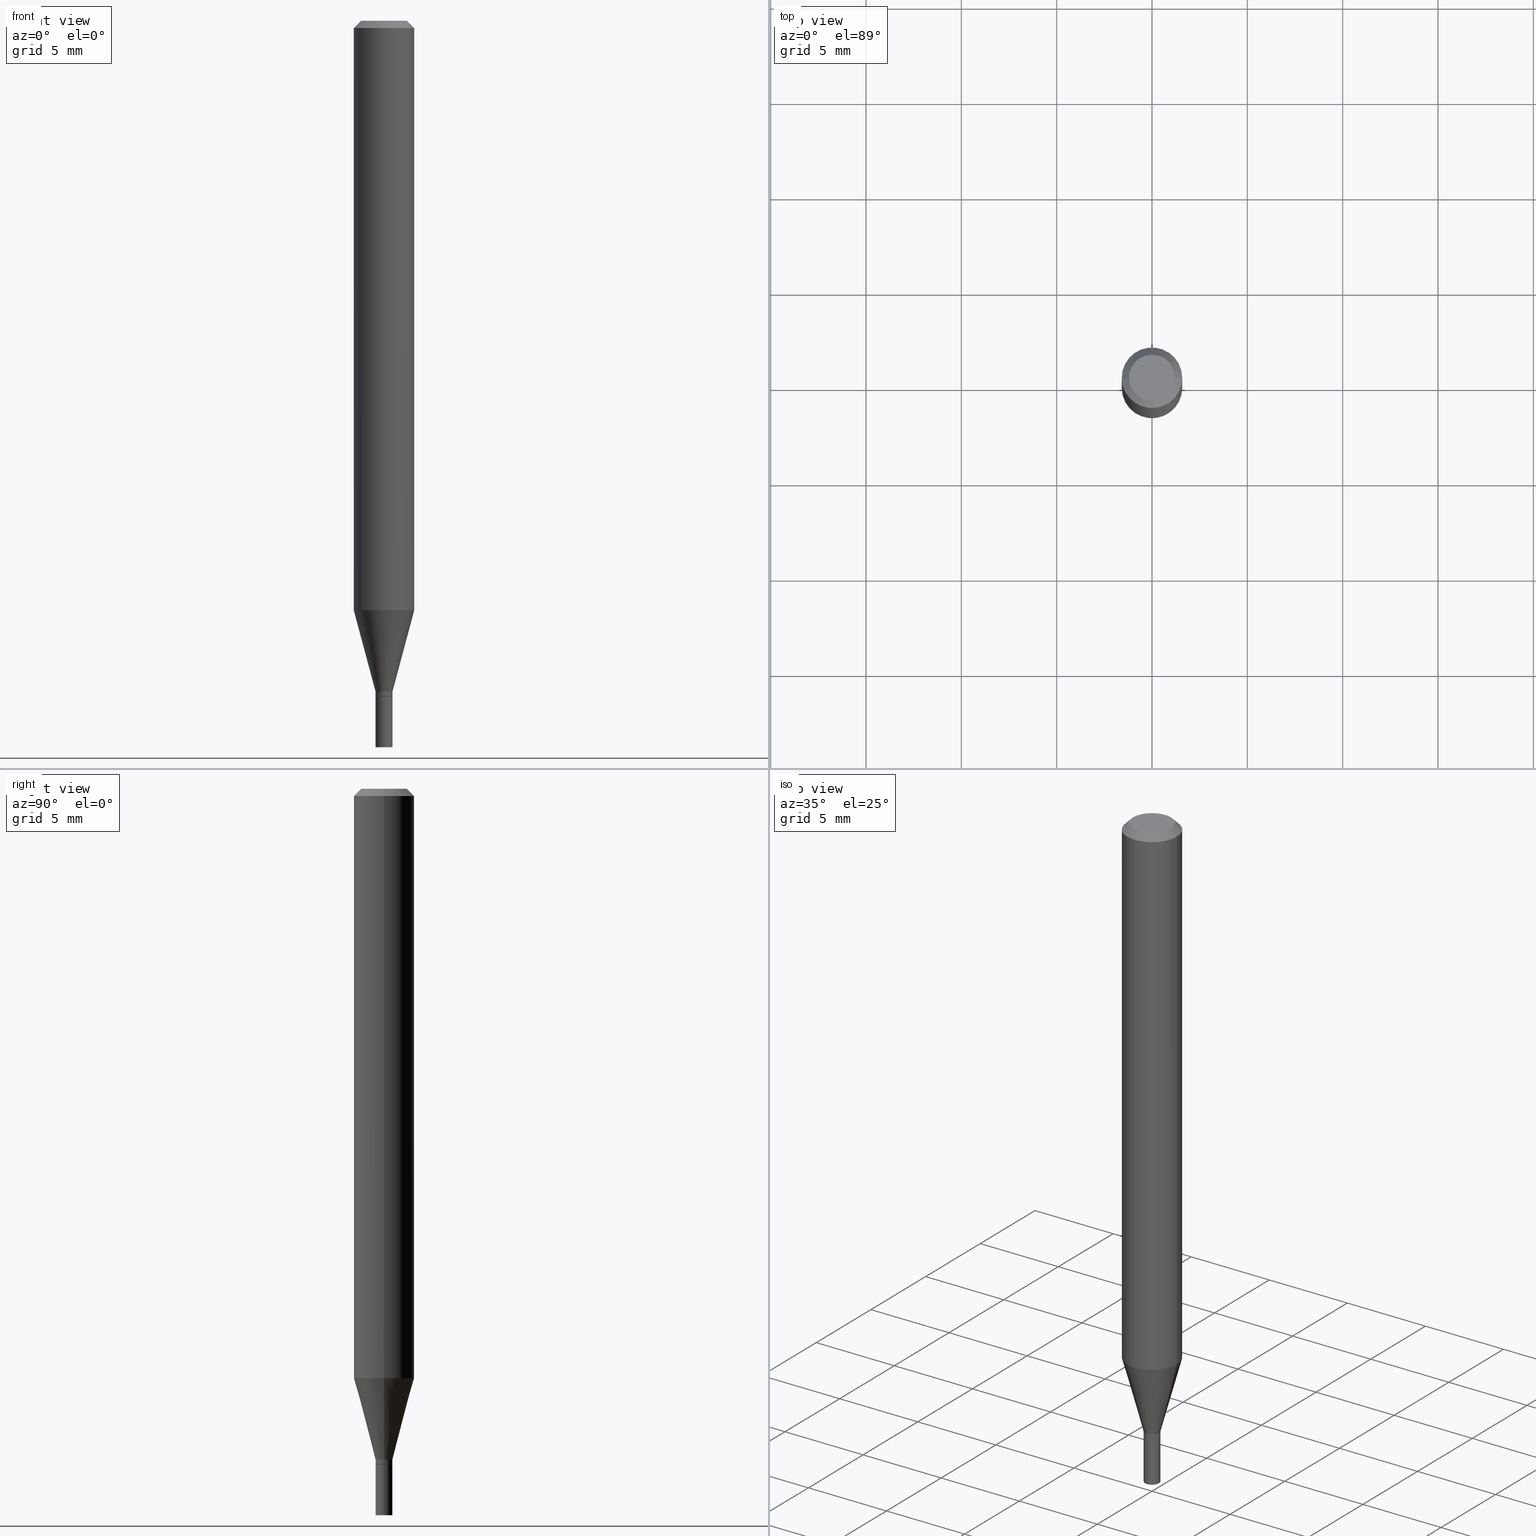
[diagram: canonical four-view strip — front | top / right | iso, engineering-drawing reading convention]
A machine part, canonical four-view strip (front | top / right | iso — engineering-drawing reading convention). The complete STEP part file that produces these views, byte-faithful:
ISO-10303-21;
HEADER;
FILE_DESCRIPTION (( 'STEP AP203' ),
    '1' );
FILE_NAME ('01186.STEP',
    '2024-03-19T23:47:36',
    ( '' ),
    ( '' ),
    'SwSTEP 2.0',
    'SolidWorks 2023',
    '' );
FILE_SCHEMA (( 'CONFIG_CONTROL_DESIGN' ));
ENDSEC;

DATA;
#1 = CARTESIAN_POINT ( 'NONE',  ( 0.01749999999999992534, -4.957903501157266562E-15, -1.385000000000000009 ) ) ;
#2 = COORDINATED_UNIVERSAL_TIME_OFFSET ( 5, 0, .BEHIND. ) ;
#3 = DIRECTION ( 'NONE',  ( 1.000000000000000000, -6.982962677686279332E-15, 0.000000000000000000 ) ) ;
#4 = VERTEX_POINT ( 'NONE', #174 ) ;
#5 = CARTESIAN_POINT ( 'NONE',  ( 3.386974296566414366E-29, -4.835701654297756579E-15, -1.385000000000000009 ) ) ;
#6 = VECTOR ( 'NONE', #458, 39.37007874015748143 ) ;
#7 = APPROVAL_ROLE ( '' ) ;
#8 = ORIENTED_EDGE ( 'NONE', *, *, #411, .F. ) ;
#9 = DIRECTION ( 'NONE',  ( -2.445468806185136597E-29, 3.491481338843145583E-15, 1.000000000000000000 ) ) ;
#10 = ORIENTED_EDGE ( 'NONE', *, *, #341, .T. ) ;
#11 = CARTESIAN_POINT ( 'NONE',  ( 3.411428984628265351E-29, -4.870616467686188228E-15, -1.395000000000000018 ) ) ;
#12 = ADVANCED_FACE ( 'NONE', ( #302 ), #312, .T. ) ;
#13 = DIRECTION ( 'NONE',  ( 1.000000000000000000, -6.982962677686248567E-15, 0.000000000000000000 ) ) ;
#14 = PRODUCT_RELATED_PRODUCT_CATEGORY ( 'detail', '', ( #131 ) ) ;
#15 = AXIS2_PLACEMENT_3D ( 'NONE', #86, #268, #162 ) ;
#16 = CARTESIAN_POINT ( 'NONE',  ( -0.01750000000000000167, -4.929574259217435954E-15, -1.395000000000000018 ) ) ;
#17 = CARTESIAN_POINT ( 'NONE',  ( 0.06250000000000000000, -4.888073874380388472E-16, -0.01499999999999999944 ) ) ;
#18 = EDGE_CURVE ( 'NONE', #42, #34, #93, .T. ) ;
#19 = CARTESIAN_POINT ( 'NONE',  ( 2.976276674081067124E-29, -4.249334295536902658E-15, -1.217057713659400964 ) ) ;
#20 = DIRECTION ( 'NONE',  ( -2.445468806185136597E-29, 3.491481338843145583E-15, 1.000000000000000000 ) ) ;
#21 = ORIENTED_EDGE ( 'NONE', *, *, #383, .T. ) ;
#22 = DIRECTION ( 'NONE',  ( -2.445468806185136597E-29, 3.491481338843145583E-15, 1.000000000000000000 ) ) ;
#23 = VERTEX_POINT ( 'NONE', #408 ) ;
#24 = CARTESIAN_POINT ( 'NONE',  ( 3.410206250225173110E-29, -4.868870727016767513E-15, -1.394500000000000073 ) ) ;
#25 = ORIENTED_EDGE ( 'NONE', *, *, #308, .F. ) ;
#26 = AXIS2_PLACEMENT_3D ( 'NONE', #163, #300, #452 ) ;
#27 = CARTESIAN_POINT ( 'NONE',  ( 3.410206250225173110E-29, -4.868870727016767513E-15, -1.394500000000000073 ) ) ;
#28 = APPROVAL_PERSON_ORGANIZATION ( #313, #386, #285 ) ;
#29 = VERTEX_POINT ( 'NONE', #153 ) ;
#30 = CARTESIAN_POINT ( 'NONE',  ( 0.06250000000000000000, -4.811533449433679005E-16, -0.01499999999999999944 ) ) ;
#31 = EDGE_LOOP ( 'NONE', ( #279, #57, #388, #221 ) ) ;
#32 = PERSON_AND_ORGANIZATION_ROLE ( 'creator' ) ;
#33 = DIRECTION ( 'NONE',  ( 0.2588190451025216277, 1.565188264969619995E-15, 0.9659258262890679791 ) ) ;
#34 = VERTEX_POINT ( 'NONE', #1 ) ;
#35 = DATE_AND_TIME ( #252, #158 ) ;
#36 = AXIS2_PLACEMENT_3D ( 'NONE', #406, #363, #258 ) ;
#37 = LOCAL_TIME ( 19, 47, 36.00000000000000000, #355 ) ;
#38 = DIRECTION ( 'NONE',  ( -2.445468806185136597E-29, 3.491481338843145583E-15, 1.000000000000000000 ) ) ;
#39 = CALENDAR_DATE ( 2024, 19, 3 ) ;
#40 = CARTESIAN_POINT ( 'NONE',  ( 3.386974296566414366E-29, -4.835701654297756579E-15, -1.385000000000000009 ) ) ;
#41 = EDGE_CURVE ( 'NONE', #201, #455, #75, .T. ) ;
#42 = VERTEX_POINT ( 'NONE', #359 ) ;
#43 = DATE_AND_TIME ( #316, #287 ) ;
#44 = ORIENTED_EDGE ( 'NONE', *, *, #203, .F. ) ;
#45 = DIRECTION ( 'NONE',  ( 1.000000000000000000, -6.982962677686265922E-15, 4.876176775795936353E-29 ) ) ;
#46 = FACE_OUTER_BOUND ( 'NONE', #82, .T. ) ;
#47 = VECTOR ( 'NONE', #61, 39.37007874015748143 ) ;
#48 = ADVANCED_FACE ( 'NONE', ( #179 ), #367, .T. ) ;
#49 = CARTESIAN_POINT ( 'NONE',  ( 3.668203209277705088E-31, -5.237222008264718399E-17, -0.01499999999999999944 ) ) ;
#50 = CARTESIAN_POINT ( 'NONE',  ( -0.01749999999999992534, -4.744525748258750265E-15, -1.394500000000000073 ) ) ;
#51 = DIRECTION ( 'NONE',  ( -0.7071067811865598962, 2.468850131082386434E-15, -0.7071067811865351382 ) ) ;
#52 = AXIS2_PLACEMENT_3D ( 'NONE', #370, #267, #13 ) ;
#53 = ADVANCED_FACE ( 'NONE', ( #281 ), #437, .T. ) ;
#54 = CARTESIAN_POINT ( 'NONE',  ( 1.278896122067429216E-44, -1.825924719719875646E-30, -5.229656247639779395E-16 ) ) ;
#55 = PERSON ( 'UNSPECIFIED', 'UNSPECIFIED', 'UNSPECIFIED', ('UNSPECIFIED'), ('UNSPECIFIED'), ('UNSPECIFIED') ) ;
#56 = DIRECTION ( 'NONE',  ( -1.000000000000000000, 6.982962677686266711E-15, 0.000000000000000000 ) ) ;
#57 = ORIENTED_EDGE ( 'NONE', *, *, #411, .T. ) ;
#58 = DIRECTION ( 'NONE',  ( -2.445468806185136597E-29, 3.491481338843145583E-15, 1.000000000000000000 ) ) ;
#59 = AXIS2_PLACEMENT_3D ( 'NONE', #5, #321, #222 ) ;
#60 = APPROVAL_PERSON_ORGANIZATION ( #74, #446, #7 ) ;
#61 = DIRECTION ( 'NONE',  ( -2.445468806185136877E-29, 3.491481338843145188E-15, 1.000000000000000000 ) ) ;
#62 = DIRECTION ( 'NONE',  ( 1.000000000000000000, 0.000000000000000000, 0.000000000000000000 ) ) ;
#63 = LINE ( 'NONE', #30, #6 ) ;
#64 = EDGE_LOOP ( 'NONE', ( #365, #352 ) ) ;
#65 = EDGE_CURVE ( 'NONE', #68, #306, #290, .T. ) ;
#66 = AXIS2_PLACEMENT_3D ( 'NONE', #454, #101, #132 ) ;
#67 = CARTESIAN_POINT ( 'NONE',  ( -0.06250000000000000000, 4.440892098500626162E-16, -3.074334431409316114E-30 ) ) ;
#68 = VERTEX_POINT ( 'NONE', #147 ) ;
#69 = PERSON_AND_ORGANIZATION_ROLE ( 'classification_officer' ) ;
#70 = ORIENTED_EDGE ( 'NONE', *, *, #308, .T. ) ;
#71 = ADVANCED_BREP_SHAPE_REPRESENTATION ( '01186', ( #206, #360, #465 ), #378 ) ;
#72 = FACE_OUTER_BOUND ( 'NONE', #31, .T. ) ;
#73 = ORIENTED_EDGE ( 'NONE', *, *, #236, .T. ) ;
#74 = PERSON_AND_ORGANIZATION ( #55, #264 ) ;
#75 = CIRCLE ( 'NONE', #36, 0.06250000000000000000 ) ;
#76 = VECTOR ( 'NONE', #192, 39.37007874015748143 ) ;
#77 = DIRECTION ( 'NONE',  ( 1.000000000000000000, -6.982962677686266711E-15, 4.876176775795935232E-29 ) ) ;
#78 = APPROVAL_ROLE ( '' ) ;
#79 = FACE_OUTER_BOUND ( 'NONE', #64, .T. ) ;
#80 = ORIENTED_EDGE ( 'NONE', *, *, #91, .T. ) ;
#81 = EDGE_CURVE ( 'NONE', #34, #261, #354, .T. ) ;
#82 = EDGE_LOOP ( 'NONE', ( #311, #191, #391, #274 ) ) ;
#83 = DIRECTION ( 'NONE',  ( 1.000000000000000000, -6.982962677686267499E-15, 4.852736867747366768E-29 ) ) ;
#84 = ORIENTED_EDGE ( 'NONE', *, *, #432, .F. ) ;
#85 = DIRECTION ( 'NONE',  ( -2.445468806185136877E-29, 3.491481338843145188E-15, 1.000000000000000000 ) ) ;
#86 = CARTESIAN_POINT ( 'NONE',  ( 3.386974296566414366E-29, -4.835701654297756579E-15, -1.385000000000000009 ) ) ;
#87 = DIRECTION ( 'NONE',  ( 0.7071067811865642261, -2.468850131082431399E-15, 0.7071067811865309194 ) ) ;
#88 = AXIS2_PLACEMENT_3D ( 'NONE', #434, #38, #143 ) ;
#89 = AXIS2_PLACEMENT_3D ( 'NONE', #19, #190, #120 ) ;
#90 = CARTESIAN_POINT ( 'NONE',  ( 0.000000000000000000, 0.000000000000000000, 0.000000000000000000 ) ) ;
#91 = EDGE_CURVE ( 'NONE', #455, #201, #233, .T. ) ;
#92 = CARTESIAN_POINT ( 'NONE',  ( 3.411428984628265351E-29, -4.870616467686188228E-15, -1.395000000000000018 ) ) ;
#93 = LINE ( 'NONE', #382, #241 ) ;
#94 = VECTOR ( 'NONE', #440, 39.37007874015748143 ) ;
#95 = CIRCLE ( 'NONE', #52, 0.01750000000000000167 ) ;
#96 = CC_DESIGN_PERSON_AND_ORGANIZATION_ASSIGNMENT ( #288, #212, ( #295 ) ) ;
#97 =( NAMED_UNIT ( * ) PLANE_ANGLE_UNIT ( ) SI_UNIT ( $, .RADIAN. ) );
#98 = ORIENTED_EDGE ( 'NONE', *, *, #219, .T. ) ;
#99 = CARTESIAN_POINT ( 'NONE',  ( 3.668203209277704895E-29, -5.237222008264718177E-15, -1.500000000000000222 ) ) ;
#100 = ORIENTED_EDGE ( 'NONE', *, *, #449, .F. ) ;
#101 = DIRECTION ( 'NONE',  ( -2.445468806185136597E-29, 3.491481338843145583E-15, 1.000000000000000000 ) ) ;
#102 = EDGE_LOOP ( 'NONE', ( #146, #183, #220, #130 ) ) ;
#103 = AXIS2_PLACEMENT_3D ( 'NONE', #466, #214, #213 ) ;
#104 = PERSON_AND_ORGANIZATION ( #55, #264 ) ;
#105 = CARTESIAN_POINT ( 'NONE',  ( 0.01749999999999992534, -4.957903501157266562E-15, -1.385000000000000009 ) ) ;
#106 = ADVANCED_FACE ( 'NONE', ( #436 ), #433, .T. ) ;
#107 = CARTESIAN_POINT ( 'NONE',  ( 3.316907271900976096E-16, 0.04749999999999999362, -4.273281759770383169E-16 ) ) ;
#108 = DATE_AND_TIME ( #39, #255 ) ;
#109 = AXIS2_PLACEMENT_3D ( 'NONE', #265, #293, #231 ) ;
#110 = VERTEX_POINT ( 'NONE', #401 ) ;
#111 = EDGE_CURVE ( 'NONE', #427, #261, #250, .T. ) ;
#112 = AXIS2_PLACEMENT_3D ( 'NONE', #376, #20, #239 ) ;
#113 = DIRECTION ( 'NONE',  ( 1.000000000000000000, -6.982962677686270655E-15, 0.000000000000000000 ) ) ;
#114 = ORIENTED_EDGE ( 'NONE', *, *, #81, .F. ) ;
#115 = LINE ( 'NONE', #260, #398 ) ;
#116 = ADVANCED_FACE ( 'NONE', ( #184 ), #394, .F. ) ;
#117 = ORIENTED_EDGE ( 'NONE', *, *, #377, .T. ) ;
#118 = DIRECTION ( 'NONE',  ( -1.000000000000000000, 6.982962677686265922E-15, -4.876176775795935793E-29 ) ) ;
#119 = CLOSED_SHELL ( 'NONE', ( #345, #297, #259, #12, #211, #284, #196, #53, #123, #116, #48, #128 ) ) ;
#120 = DIRECTION ( 'NONE',  ( 1.000000000000000000, -6.982962677686270655E-15, 0.000000000000000000 ) ) ;
#121 = CONICAL_SURFACE ( 'NONE', #15, 0.01749999999999992534, 0.2617993877991502960 ) ;
#122 = FACE_OUTER_BOUND ( 'NONE', #102, .T. ) ;
#123 = ADVANCED_FACE ( 'NONE', ( #79 ), #283, .F. ) ;
#124 = LINE ( 'NONE', #338, #243 ) ;
#125 = CLOSED_SHELL ( 'NONE', ( #106, #426, #237, #420 ) ) ;
#126 = VECTOR ( 'NONE', #51, 39.37007874015748143 ) ;
#127 = FACE_OUTER_BOUND ( 'NONE', #385, .T. ) ;
#128 = ADVANCED_FACE ( 'NONE', ( #72 ), #254, .T. ) ;
#129 = APPLICATION_PROTOCOL_DEFINITION ( 'international standard', 'config_control_design', 1994, #339 ) ;
#130 = ORIENTED_EDGE ( 'NONE', *, *, #18, .F. ) ;
#131 = PRODUCT ( '01186', '01186', '', ( #326 ) ) ;
#132 = DIRECTION ( 'NONE',  ( 1.000000000000000000, -6.982962677686248567E-15, 0.000000000000000000 ) ) ;
#133 = ORIENTED_EDGE ( 'NONE', *, *, #456, .T. ) ;
#134 = AXIS2_PLACEMENT_3D ( 'NONE', #157, #296, #445 ) ;
#135 = CARTESIAN_POINT ( 'NONE',  ( 3.584916967085606921E-29, -5.356492647442320375E-15, -1.500000000000000222 ) ) ;
#136 = EDGE_CURVE ( 'NONE', #29, #34, #294, .T. ) ;
#137 = ORIENTED_EDGE ( 'NONE', *, *, #424, .T. ) ;
#138 =( CONVERSION_BASED_UNIT ( 'INCH', #460 ) LENGTH_UNIT ( ) NAMED_UNIT ( #226 ) );
#139 = VERTEX_POINT ( 'NONE', #292 ) ;
#140 = DIRECTION ( 'NONE',  ( -2.445468806185136597E-29, 3.491481338843145583E-15, 1.000000000000000000 ) ) ;
#141 = CIRCLE ( 'NONE', #89, 0.06250000000000000000 ) ;
#142 = CC_DESIGN_SECURITY_CLASSIFICATION ( #457, ( #295 ) ) ;
#143 = DIRECTION ( 'NONE',  ( 1.000000000000000000, -6.982962677686266711E-15, 0.000000000000000000 ) ) ;
#144 = DIRECTION ( 'NONE',  ( 1.000000000000000000, -6.982962677686265922E-15, 4.876176775795935793E-29 ) ) ;
#145 = PERSON_AND_ORGANIZATION ( #55, #264 ) ;
#146 = ORIENTED_EDGE ( 'NONE', *, *, #432, .T. ) ;
#147 = CARTESIAN_POINT ( 'NONE',  ( -0.01700000000000000122, -4.747174975432860677E-15, -1.395000000000000018 ) ) ;
#148 = PERSON_AND_ORGANIZATION ( #55, #264 ) ;
#149 = VECTOR ( 'NONE', #189, 39.37007874015748143 ) ;
#150 = CIRCLE ( 'NONE', #315, 0.04749999999999999362 ) ;
#151 = LINE ( 'NONE', #442, #94 ) ;
#152 = ORIENTED_EDGE ( 'NONE', *, *, #136, .T. ) ;
#153 = CARTESIAN_POINT ( 'NONE',  ( -0.01749999999999992534, -4.258300880613290081E-15, -1.385000000000000009 ) ) ;
#154 = ORIENTED_EDGE ( 'NONE', *, *, #336, .F. ) ;
#155 = CARTESIAN_POINT ( 'NONE',  ( -0.01749999999999992534, -4.711356675539740119E-15, -1.385000000000000009 ) ) ;
#156 = CIRCLE ( 'NONE', #325, 0.04749999999999999362 ) ;
#157 = CARTESIAN_POINT ( 'NONE',  ( 3.411428984628265351E-29, -4.870616467686188228E-15, -1.395000000000000018 ) ) ;
#158 = LOCAL_TIME ( 19, 47, 36.00000000000000000, #429 ) ;
#159 = EDGE_CURVE ( 'NONE', #34, #29, #263, .T. ) ;
#160 = CYLINDRICAL_SURFACE ( 'NONE', #109, 0.06250000000000000000 ) ;
#161 = CC_DESIGN_PERSON_AND_ORGANIZATION_ASSIGNMENT ( #145, #393, ( #185 ) ) ;
#162 = DIRECTION ( 'NONE',  ( 1.000000000000000000, -6.982962677686279332E-15, 0.000000000000000000 ) ) ;
#163 = CARTESIAN_POINT ( 'NONE',  ( 3.386974296566414366E-29, -4.835701654297756579E-15, -1.385000000000000009 ) ) ;
#164 = AXIS2_PLACEMENT_3D ( 'NONE', #40, #182, #3 ) ;
#165 = DIRECTION ( 'NONE',  ( 1.000000000000000000, -6.982962677686279332E-15, 0.000000000000000000 ) ) ;
#166 = ORIENTED_EDGE ( 'NONE', *, *, #341, .F. ) ;
#167 = ORIENTED_EDGE ( 'NONE', *, *, #193, .T. ) ;
#168 = EDGE_CURVE ( 'NONE', #261, #201, #151, .T. ) ;
#169 = PLANE ( 'NONE',  #430 ) ;
#170 = ORIENTED_EDGE ( 'NONE', *, *, #244, .F. ) ;
#171 = AXIS2_PLACEMENT_3D ( 'NONE', #49, #375, #56 ) ;
#172 = CARTESIAN_POINT ( 'NONE',  ( -0.06250000000000000000, -1.706764047959712450E-15, -0.01499999999999999944 ) ) ;
#173 = EDGE_LOOP ( 'NONE', ( #100, #323, #98, #80 ) ) ;
#174 = CARTESIAN_POINT ( 'NONE',  ( 0.01750000000000000167, -4.992818314545698211E-15, -1.395000000000000018 ) ) ;
#175 = DATE_AND_TIME ( #404, #37 ) ;
#176 = CARTESIAN_POINT ( 'NONE',  ( 3.411428984628265351E-29, -4.870616467686188228E-15, -1.395000000000000018 ) ) ;
#177 = LOCAL_TIME ( 19, 47, 36.00000000000000000, #2 ) ;
#178 = COORDINATED_UNIVERSAL_TIME_OFFSET ( 5, 0, .BEHIND. ) ;
#179 = FACE_OUTER_BOUND ( 'NONE', #245, .T. ) ;
#180 = APPROVAL ( #256, 'UNSPECIFIED' ) ;
#181 = APPROVAL_STATUS ( 'not_yet_approved' ) ;
#182 = DIRECTION ( 'NONE',  ( -2.445468806185136597E-29, 3.491481338843145583E-15, 1.000000000000000000 ) ) ;
#183 = ORIENTED_EDGE ( 'NONE', *, *, #272, .T. ) ;
#184 = FACE_OUTER_BOUND ( 'NONE', #327, .T. ) ;
#185 = PRODUCT_DEFINITION ( 'UNKNOWN', '', #295, #399 ) ;
#186 = DATE_TIME_ROLE ( 'creation_date' ) ;
#187 = VECTOR ( 'NONE', #33, 39.37007874015748143 ) ;
#188 = CIRCLE ( 'NONE', #134, 0.01700000000000000122 ) ;
#189 = DIRECTION ( 'NONE',  ( -0.7071067811865642261, 7.493145998870414114E-15, 0.7071067811865309194 ) ) ;
#190 = DIRECTION ( 'NONE',  ( -2.445468806185136597E-29, 3.491481338843145583E-15, 1.000000000000000000 ) ) ;
#191 = ORIENTED_EDGE ( 'NONE', *, *, #111, .T. ) ;
#192 = DIRECTION ( 'NONE',  ( -0.2588190451025216277, 5.211531920934551831E-15, 0.9659258262890679791 ) ) ;
#193 = EDGE_CURVE ( 'NONE', #271, #320, #115, .T. ) ;
#194 = CARTESIAN_POINT ( 'NONE',  ( 0.01750000000000000167, -1.222018468595096625E-16, 8.533309357642889039E-31 ) ) ;
#195 = FACE_OUTER_BOUND ( 'NONE', #428, .T. ) ;
#196 = ADVANCED_FACE ( 'NONE', ( #46 ), #160, .T. ) ;
#197 = CARTESIAN_POINT ( 'NONE',  ( -0.01750000000000000167, -4.929574259217435954E-15, -1.500000000000000222 ) ) ;
#198 = PLANE ( 'NONE',  #334 ) ;
#199 = AXIS2_PLACEMENT_3D ( 'NONE', #107, #328, #118 ) ;
#200 = DIRECTION ( 'NONE',  ( 1.000000000000000000, -6.982962677686274599E-15, 0.000000000000000000 ) ) ;
#201 = VERTEX_POINT ( 'NONE', #17 ) ;
#202 = DIRECTION ( 'NONE',  ( 1.000000000000000000, -6.982962677686248567E-15, 0.000000000000000000 ) ) ;
#203 = EDGE_CURVE ( 'NONE', #224, #110, #156, .T. ) ;
#204 = DIRECTION ( 'NONE',  ( -2.445468806185136597E-29, 3.491481338843145583E-15, 1.000000000000000000 ) ) ;
#205 = ORIENTED_EDGE ( 'NONE', *, *, #41, .T. ) ;
#206 = MANIFOLD_SOLID_BREP ( 'Body-Move/Copy2[1]', #125 ) ;
#207 = AXIS2_PLACEMENT_3D ( 'NONE', #253, #314, #113 ) ;
#208 = AXIS2_PLACEMENT_3D ( 'NONE', #24, #58, #165 ) ;
#209 = DIRECTION ( 'NONE',  ( -2.438088387897960049E-29, 3.491481338843145188E-15, 1.000000000000000000 ) ) ;
#210 = ORIENTED_EDGE ( 'NONE', *, *, #236, .F. ) ;
#211 = ADVANCED_FACE ( 'NONE', ( #195 ), #121, .T. ) ;
#212 = PERSON_AND_ORGANIZATION_ROLE ( 'design_supplier' ) ;
#213 = DIRECTION ( 'NONE',  ( -1.000000000000000000, 6.982962677686266711E-15, 0.000000000000000000 ) ) ;
#214 = DIRECTION ( 'NONE',  ( 2.445468806185136597E-29, -3.491481338843145583E-15, -1.000000000000000000 ) ) ;
#215 = ORIENTED_EDGE ( 'NONE', *, *, #168, .F. ) ;
#216 = AXIS2_PLACEMENT_3D ( 'NONE', #92, #140, #202 ) ;
#217 = PERSON_AND_ORGANIZATION ( #55, #264 ) ;
#218 = DIRECTION ( 'NONE',  ( -2.445468806185136597E-29, 3.491481338843145583E-15, 1.000000000000000000 ) ) ;
#219 = EDGE_CURVE ( 'NONE', #110, #455, #234, .T. ) ;
#220 = ORIENTED_EDGE ( 'NONE', *, *, #159, .F. ) ;
#221 = ORIENTED_EDGE ( 'NONE', *, *, #136, .F. ) ;
#222 = DIRECTION ( 'NONE',  ( 1.000000000000000000, -6.982962677686279332E-15, 0.000000000000000000 ) ) ;
#223 = APPLICATION_PROTOCOL_DEFINITION ( 'international standard', 'config_control_design', 1994, #403 ) ;
#224 = VERTEX_POINT ( 'NONE', #443 ) ;
#225 = CARTESIAN_POINT ( 'NONE',  ( 0.000000000000000000, 0.000000000000000000, 0.000000000000000000 ) ) ;
#226 = DIMENSIONAL_EXPONENTS ( 1.000000000000000000, 0.000000000000000000, 0.000000000000000000, 0.000000000000000000, 0.000000000000000000, 0.000000000000000000, 0.000000000000000000 ) ;
#227 = EDGE_LOOP ( 'NONE', ( #117, #425, #84, #170 ) ) ;
#228 = CIRCLE ( 'NONE', #216, 0.01750000000000000167 ) ;
#229 = DIRECTION ( 'NONE',  ( 1.000000000000000000, -6.982962677686265922E-15, 4.876176775795936353E-29 ) ) ;
#230 = EDGE_CURVE ( 'NONE', #110, #224, #150, .T. ) ;
#231 = DIRECTION ( 'NONE',  ( 1.000000000000000000, -6.982962677686266711E-15, 4.876176775795935793E-29 ) ) ;
#232 = CARTESIAN_POINT ( 'NONE',  ( -0.06250000000000000000, 3.840629472727444916E-16, -0.01499999999999999944 ) ) ;
#233 = CIRCLE ( 'NONE', #88, 0.06250000000000000000 ) ;
#234 = LINE ( 'NONE', #232, #126 ) ;
#235 = CONICAL_SURFACE ( 'NONE', #26, 0.01749999999999992534, 0.2617993877991502960 ) ;
#236 = EDGE_CURVE ( 'NONE', #23, #4, #448, .T. ) ;
#237 = ADVANCED_FACE ( 'NONE', ( #127 ), #270, .T. ) ;
#238 = DIRECTION ( 'NONE',  ( -2.445468806185136597E-29, 3.491481338843145583E-15, 1.000000000000000000 ) ) ;
#239 = DIRECTION ( 'NONE',  ( 1.000000000000000000, -6.982962677686266711E-15, 4.876176775795935232E-29 ) ) ;
#240 = DIRECTION ( 'NONE',  ( 0.000000000000000000, 0.000000000000000000, 1.000000000000000000 ) ) ;
#241 = VECTOR ( 'NONE', #380, 39.37007874015748143 ) ;
#242 = EDGE_LOOP ( 'NONE', ( #133, #167, #291, #210 ) ) ;
#243 = VECTOR ( 'NONE', #85, 39.37007874015748143 ) ;
#244 = EDGE_CURVE ( 'NONE', #139, #42, #369, .T. ) ;
#245 = EDGE_LOOP ( 'NONE', ( #405, #10, #318, #8 ) ) ;
#246 = CARTESIAN_POINT ( 'NONE',  ( 3.411428984628265351E-29, -4.870616467686188228E-15, -1.395000000000000018 ) ) ;
#247 = EDGE_LOOP ( 'NONE', ( #25, #152, #249, #310 ) ) ;
#248 =( NAMED_UNIT ( * ) SI_UNIT ( $, .STERADIAN. ) SOLID_ANGLE_UNIT ( ) );
#249 = ORIENTED_EDGE ( 'NONE', *, *, #81, .T. ) ;
#250 = CIRCLE ( 'NONE', #207, 0.06250000000000000000 ) ;
#251 = AXIS2_PLACEMENT_3D ( 'NONE', #246, #379, #200 ) ;
#252 = CALENDAR_DATE ( 2024, 19, 3 ) ;
#253 = CARTESIAN_POINT ( 'NONE',  ( 2.976276674081067124E-29, -4.249334295536902658E-15, -1.217057713659400964 ) ) ;
#254 = CYLINDRICAL_SURFACE ( 'NONE', #464, 0.01749999999999992534 ) ;
#255 = LOCAL_TIME ( 19, 47, 36.00000000000000000, #178 ) ;
#256 = APPROVAL_STATUS ( 'not_yet_approved' ) ;
#257 = ORIENTED_EDGE ( 'NONE', *, *, #219, .F. ) ;
#258 = DIRECTION ( 'NONE',  ( 1.000000000000000000, -6.982962677686266711E-15, 0.000000000000000000 ) ) ;
#259 = ADVANCED_FACE ( 'NONE', ( #335 ), #415, .T. ) ;
#260 = CARTESIAN_POINT ( 'NONE',  ( -0.01750000000000000167, 1.243449787580175444E-16, -8.608136407946085539E-31 ) ) ;
#261 = VERTEX_POINT ( 'NONE', #333 ) ;
#262 = DIRECTION ( 'NONE',  ( -2.445468806185136597E-29, 3.491481338843145583E-15, 1.000000000000000000 ) ) ;
#263 = CIRCLE ( 'NONE', #59, 0.01749999999999992534 ) ;
#264 = ORGANIZATION ( 'UNSPECIFIED', 'UNSPECIFIED', '' ) ;
#265 = CARTESIAN_POINT ( 'NONE',  ( 0.000000000000000000, 0.000000000000000000, 0.000000000000000000 ) ) ;
#266 = DIRECTION ( 'NONE',  ( 1.000000000000000000, -6.982962677686274599E-15, 0.000000000000000000 ) ) ;
#267 = DIRECTION ( 'NONE',  ( -2.445468806185136597E-29, 3.491481338843145583E-15, 1.000000000000000000 ) ) ;
#268 = DIRECTION ( 'NONE',  ( -2.445468806185136597E-29, 3.491481338843145583E-15, 1.000000000000000000 ) ) ;
#269 = CIRCLE ( 'NONE', #66, 0.01750000000000000167 ) ;
#270 = CYLINDRICAL_SURFACE ( 'NONE', #389, 0.01750000000000000167 ) ;
#271 = VERTEX_POINT ( 'NONE', #197 ) ;
#272 = EDGE_CURVE ( 'NONE', #306, #29, #124, .T. ) ;
#273 = DIRECTION ( 'NONE',  ( 1.000000000000000000, -6.982962677686279332E-15, 0.000000000000000000 ) ) ;
#274 = ORIENTED_EDGE ( 'NONE', *, *, #91, .F. ) ;
#275 = PRODUCT_DEFINITION_SHAPE ( 'NONE', 'NONE',  #185 ) ;
#276 = ORIENTED_EDGE ( 'NONE', *, *, #277, .T. ) ;
#277 = EDGE_CURVE ( 'NONE', #261, #427, #141, .T. ) ;
#278 = CALENDAR_DATE ( 2024, 19, 3 ) ;
#279 = ORIENTED_EDGE ( 'NONE', *, *, #272, .F. ) ;
#280 = APPROVAL_DATE_TIME ( #43, #386 ) ;
#281 = FACE_OUTER_BOUND ( 'NONE', #173, .T. ) ;
#282 = APPROVAL_DATE_TIME ( #35, #180 ) ;
#283 = PLANE ( 'NONE',  #199 ) ;
#284 = ADVANCED_FACE ( 'NONE', ( #373 ), #235, .T. ) ;
#285 = APPROVAL_ROLE ( '' ) ;
#286 = DIRECTION ( 'NONE',  ( 1.000000000000000000, -6.982962677686274599E-15, 0.000000000000000000 ) ) ;
#287 = LOCAL_TIME ( 19, 47, 36.00000000000000000, #435 ) ;
#288 = PERSON_AND_ORGANIZATION ( #55, #264 ) ;
#289 = ORIENTED_EDGE ( 'NONE', *, *, #402, .F. ) ;
#290 = LINE ( 'NONE', #356, #149 ) ;
#291 = ORIENTED_EDGE ( 'NONE', *, *, #383, .F. ) ;
#292 = CARTESIAN_POINT ( 'NONE',  ( 0.01700000000000000122, -4.989326833206855204E-15, -1.395000000000000018 ) ) ;
#293 = DIRECTION ( 'NONE',  ( -2.445468806185136597E-29, 3.491481338843145583E-15, 1.000000000000000000 ) ) ;
#294 = CIRCLE ( 'NONE', #164, 0.01749999999999992534 ) ;
#295 = PRODUCT_DEFINITION_FORMATION_WITH_SPECIFIED_SOURCE ( 'ANY', '', #131, .NOT_KNOWN. ) ;
#296 = DIRECTION ( 'NONE',  ( -2.445468806185136597E-29, 3.491481338843145583E-15, 1.000000000000000000 ) ) ;
#297 = ADVANCED_FACE ( 'NONE', ( #330 ), #451, .T. ) ;
#298 = DIRECTION ( 'NONE',  ( 1.000000000000000000, -6.982962677686267499E-15, 4.852736867747366768E-29 ) ) ;
#299 = CARTESIAN_POINT ( 'NONE',  ( 1.278896122067429216E-44, -1.825924719719875646E-30, -5.229656247639779395E-16 ) ) ;
#300 = DIRECTION ( 'NONE',  ( -2.445468806185136597E-29, 3.491481338843145583E-15, 1.000000000000000000 ) ) ;
#301 = UNCERTAINTY_MEASURE_WITH_UNIT (LENGTH_MEASURE( 1.000000000000000082E-05 ), #138, 'distance_accuracy_value', 'NONE');
#302 = FACE_OUTER_BOUND ( 'NONE', #329, .T. ) ;
#303 = DIRECTION ( 'NONE',  ( 2.438088387897960049E-29, -3.491481338843145188E-15, -1.000000000000000000 ) ) ;
#304 = ORIENTED_EDGE ( 'NONE', *, *, #456, .F. ) ;
#305 = DIRECTION ( 'NONE',  ( -1.000000000000000000, 6.982962677686265922E-15, -4.876176775795935793E-29 ) ) ;
#306 = VERTEX_POINT ( 'NONE', #50 ) ;
#307 = AXIS2_PLACEMENT_3D ( 'NONE', #27, #22, #273 ) ;
#308 = EDGE_CURVE ( 'NONE', #29, #427, #413, .T. ) ;
#309 =( LENGTH_UNIT ( ) NAMED_UNIT ( * ) SI_UNIT ( $, .METRE. ) );
#310 = ORIENTED_EDGE ( 'NONE', *, *, #111, .F. ) ;
#311 = ORIENTED_EDGE ( 'NONE', *, *, #424, .F. ) ;
#312 = CYLINDRICAL_SURFACE ( 'NONE', #347, 0.06250000000000000000 ) ;
#313 = PERSON_AND_ORGANIZATION ( #55, #264 ) ;
#314 = DIRECTION ( 'NONE',  ( -2.445468806185136597E-29, 3.491481338843145583E-15, 1.000000000000000000 ) ) ;
#315 = AXIS2_PLACEMENT_3D ( 'NONE', #299, #371, #298 ) ;
#316 = CALENDAR_DATE ( 2024, 19, 3 ) ;
#317 = DIRECTION ( 'NONE',  ( -2.438088387897960049E-29, 3.491481338843145188E-15, 1.000000000000000000 ) ) ;
#318 = ORIENTED_EDGE ( 'NONE', *, *, #244, .T. ) ;
#319 = APPROVAL_DATE_TIME ( #364, #446 ) ;
#320 = VERTEX_POINT ( 'NONE', #16 ) ;
#321 = DIRECTION ( 'NONE',  ( -2.445468806185136597E-29, 3.491481338843145583E-15, 1.000000000000000000 ) ) ;
#322 = EDGE_LOOP ( 'NONE', ( #44, #349, #205, #257 ) ) ;
#323 = ORIENTED_EDGE ( 'NONE', *, *, #230, .F. ) ;
#324 = CARTESIAN_POINT ( 'NONE',  ( 3.411428984628265351E-29, -4.870616467686188228E-15, -1.395000000000000018 ) ) ;
#325 = AXIS2_PLACEMENT_3D ( 'NONE', #54, #337, #83 ) ;
#326 = MECHANICAL_CONTEXT ( 'NONE', #339, 'mechanical' ) ;
#327 = EDGE_LOOP ( 'NONE', ( #362, #166 ) ) ;
#328 = DIRECTION ( 'NONE',  ( 2.438088387897960049E-29, -3.491481338843145188E-15, -1.000000000000000000 ) ) ;
#329 = EDGE_LOOP ( 'NONE', ( #276, #137, #461, #215 ) ) ;
#330 = FACE_OUTER_BOUND ( 'NONE', #227, .T. ) ;
#331 = CC_DESIGN_PERSON_AND_ORGANIZATION_ASSIGNMENT ( #358, #69, ( #457 ) ) ;
#332 = ORIENTED_EDGE ( 'NONE', *, *, #193, .F. ) ;
#333 = CARTESIAN_POINT ( 'NONE',  ( 0.06249999999999999306, -4.685769462892295117E-15, -1.217057713659400964 ) ) ;
#334 = AXIS2_PLACEMENT_3D ( 'NONE', #135, #209, #342 ) ;
#335 = FACE_OUTER_BOUND ( 'NONE', #322, .T. ) ;
#336 = EDGE_CURVE ( 'NONE', #320, #4, #95, .T. ) ;
#337 = DIRECTION ( 'NONE',  ( -2.445468806185136597E-29, 3.491481338843145583E-15, 1.000000000000000000 ) ) ;
#338 = CARTESIAN_POINT ( 'NONE',  ( -0.01749999999999992534, 1.243449787580170020E-16, -8.608136407946047003E-31 ) ) ;
#339 = APPLICATION_CONTEXT ( 'configuration controlled 3d designs of mechanical parts and assemblies' ) ;
#340 = VECTOR ( 'NONE', #417, 39.37007874015748143 ) ;
#341 = EDGE_CURVE ( 'NONE', #68, #139, #188, .T. ) ;
#342 = DIRECTION ( 'NONE',  ( 1.000000000000000000, -6.982962677686265922E-15, 4.876176775795935793E-29 ) ) ;
#343 = DIRECTION ( 'NONE',  ( -2.445468806185136597E-29, 3.491481338843145583E-15, 1.000000000000000000 ) ) ;
#344 = ORIENTED_EDGE ( 'NONE', *, *, #277, .F. ) ;
#345 = ADVANCED_FACE ( 'NONE', ( #122 ), #412, .T. ) ;
#346 = DIRECTION ( 'NONE',  ( 1.000000000000000000, -6.982962677686248567E-15, 0.000000000000000000 ) ) ;
#347 = AXIS2_PLACEMENT_3D ( 'NONE', #453, #343, #421 ) ;
#348 = AXIS2_PLACEMENT_3D ( 'NONE', #99, #204, #346 ) ;
#349 = ORIENTED_EDGE ( 'NONE', *, *, #449, .T. ) ;
#350 = CC_DESIGN_PERSON_AND_ORGANIZATION_ASSIGNMENT ( #104, #353, ( #131 ) ) ;
#351 = FACE_OUTER_BOUND ( 'NONE', #439, .T. ) ;
#352 = ORIENTED_EDGE ( 'NONE', *, *, #203, .T. ) ;
#353 = PERSON_AND_ORGANIZATION_ROLE ( 'design_owner' ) ;
#354 = LINE ( 'NONE', #105, #187 ) ;
#355 = COORDINATED_UNIVERSAL_TIME_OFFSET ( 5, 0, .BEHIND. ) ;
#356 = CARTESIAN_POINT ( 'NONE',  ( -0.01700000000000000122, -4.749824202606971878E-15, -1.395000000000000018 ) ) ;
#357 = APPROVAL_PERSON_ORGANIZATION ( #148, #180, #78 ) ;
#358 = PERSON_AND_ORGANIZATION ( #55, #264 ) ;
#359 = CARTESIAN_POINT ( 'NONE',  ( 0.01749999999999992534, -4.991072573876276707E-15, -1.394500000000000073 ) ) ;
#360 = MANIFOLD_SOLID_BREP ( 'Body-Move/Copy2[2]', #119 ) ;
#361 = DATE_TIME_ROLE ( 'classification_date' ) ;
#362 = ORIENTED_EDGE ( 'NONE', *, *, #377, .F. ) ;
#363 = DIRECTION ( 'NONE',  ( -2.445468806185136597E-29, 3.491481338843145583E-15, 1.000000000000000000 ) ) ;
#364 = DATE_AND_TIME ( #278, #177 ) ;
#365 = ORIENTED_EDGE ( 'NONE', *, *, #230, .T. ) ;
#366 = DIRECTION ( 'NONE',  ( -2.445468806185136877E-29, 3.491481338843145188E-15, 1.000000000000000000 ) ) ;
#367 = CONICAL_SURFACE ( 'NONE', #387, 0.01700000000000000122, 0.7853981633974718157 ) ;
#368 = AXIS2_PLACEMENT_3D ( 'NONE', #11, #410, #266 ) ;
#369 = LINE ( 'NONE', #447, #372 ) ;
#370 = CARTESIAN_POINT ( 'NONE',  ( 3.411428984628265351E-29, -4.870616467686188228E-15, -1.395000000000000018 ) ) ;
#371 = DIRECTION ( 'NONE',  ( -2.445468806185136597E-29, 3.491481338843145583E-15, 1.000000000000000000 ) ) ;
#372 = VECTOR ( 'NONE', #87, 39.37007874015748143 ) ;
#373 = FACE_OUTER_BOUND ( 'NONE', #247, .T. ) ;
#374 = CC_DESIGN_DATE_AND_TIME_ASSIGNMENT ( #108, #361, ( #457 ) ) ;
#375 = DIRECTION ( 'NONE',  ( 2.445468806185136597E-29, -3.491481338843145583E-15, -1.000000000000000000 ) ) ;
#376 = CARTESIAN_POINT ( 'NONE',  ( 0.000000000000000000, 0.000000000000000000, 0.000000000000000000 ) ) ;
#377 = EDGE_CURVE ( 'NONE', #139, #68, #431, .T. ) ;
#378 =( GEOMETRIC_REPRESENTATION_CONTEXT ( 3 ) GLOBAL_UNCERTAINTY_ASSIGNED_CONTEXT ( ( #301 ) ) GLOBAL_UNIT_ASSIGNED_CONTEXT ( ( #138, #97, #248 ) ) REPRESENTATION_CONTEXT ( 'NONE', 'WORKASPACE' ) );
#379 = DIRECTION ( 'NONE',  ( -2.445468806185136597E-29, 3.491481338843145583E-15, 1.000000000000000000 ) ) ;
#380 = DIRECTION ( 'NONE',  ( -2.445468806185136877E-29, 3.491481338843145188E-15, 1.000000000000000000 ) ) ;
#381 = CARTESIAN_POINT ( 'NONE',  ( 0.000000000000000000, 0.000000000000000000, 0.000000000000000000 ) ) ;
#382 = CARTESIAN_POINT ( 'NONE',  ( 0.01749999999999992534, -1.222018468595091448E-16, 8.533309357642850503E-31 ) ) ;
#383 = EDGE_CURVE ( 'NONE', #4, #320, #228, .T. ) ;
#384 = CARTESIAN_POINT ( 'NONE',  ( 1.222018468595437807E-16, 0.01749999999999513056, -1.395000000000000018 ) ) ;
#385 = EDGE_LOOP ( 'NONE', ( #332, #395, #73, #154 ) ) ;
#386 = APPROVAL ( #181, 'UNSPECIFIED' ) ;
#387 = AXIS2_PLACEMENT_3D ( 'NONE', #176, #218, #286 ) ;
#388 = ORIENTED_EDGE ( 'NONE', *, *, #18, .T. ) ;
#389 = AXIS2_PLACEMENT_3D ( 'NONE', #90, #238, #229 ) ;
#390 = SECURITY_CLASSIFICATION_LEVEL ( 'unclassified' ) ;
#391 = ORIENTED_EDGE ( 'NONE', *, *, #168, .T. ) ;
#392 = EDGE_LOOP ( 'NONE', ( #21, #407 ) ) ;
#393 = PERSON_AND_ORGANIZATION_ROLE ( 'creator' ) ;
#394 = PLANE ( 'NONE',  #414 ) ;
#395 = ORIENTED_EDGE ( 'NONE', *, *, #402, .T. ) ;
#396 = APPROVAL_STATUS ( 'not_yet_approved' ) ;
#397 = CARTESIAN_POINT ( 'NONE',  ( 0.000000000000000000, 0.000000000000000000, 0.000000000000000000 ) ) ;
#398 = VECTOR ( 'NONE', #366, 39.37007874015748143 ) ;
#399 = DESIGN_CONTEXT ( 'detailed design', #403, 'design' ) ;
#400 = CIRCLE ( 'NONE', #307, 0.01749999999999992534 ) ;
#401 = CARTESIAN_POINT ( 'NONE',  ( -0.04749999999999999362, 3.578768372314202124E-16, -5.229656247639803061E-16 ) ) ;
#402 = EDGE_CURVE ( 'NONE', #271, #23, #438, .T. ) ;
#403 = APPLICATION_CONTEXT ( 'configuration controlled 3d designs of mechanical parts and assemblies' ) ;
#404 = CALENDAR_DATE ( 2024, 19, 3 ) ;
#405 = ORIENTED_EDGE ( 'NONE', *, *, #65, .F. ) ;
#406 = CARTESIAN_POINT ( 'NONE',  ( 3.668203209277705088E-31, -5.237222008264718399E-17, -0.01499999999999999944 ) ) ;
#407 = ORIENTED_EDGE ( 'NONE', *, *, #336, .T. ) ;
#408 = CARTESIAN_POINT ( 'NONE',  ( 0.01750000000000000167, -5.359423855124228160E-15, -1.500000000000000222 ) ) ;
#409 = CIRCLE ( 'NONE', #208, 0.01749999999999992534 ) ;
#410 = DIRECTION ( 'NONE',  ( -2.445468806185136597E-29, 3.491481338843145583E-15, 1.000000000000000000 ) ) ;
#411 = EDGE_CURVE ( 'NONE', #306, #42, #409, .T. ) ;
#412 = CYLINDRICAL_SURFACE ( 'NONE', #112, 0.01749999999999992534 ) ;
#413 = LINE ( 'NONE', #155, #76 ) ;
#414 = AXIS2_PLACEMENT_3D ( 'NONE', #324, #317, #144 ) ;
#415 = CONICAL_SURFACE ( 'NONE', #171, 0.06250000000000000000, 0.7853981633974658205 ) ;
#416 = CC_DESIGN_APPROVAL ( #386, ( #457 ) ) ;
#417 = DIRECTION ( 'NONE',  ( -2.445468806185136877E-29, 3.491481338843145188E-15, 1.000000000000000000 ) ) ;
#418 = CARTESIAN_POINT ( 'NONE',  ( -0.06249999999999999306, -3.805245085686840042E-15, -1.217057713659400964 ) ) ;
#419 = CC_DESIGN_DATE_AND_TIME_ASSIGNMENT ( #175, #186, ( #185 ) ) ;
#420 = ADVANCED_FACE ( 'NONE', ( #423 ), #169, .F. ) ;
#421 = DIRECTION ( 'NONE',  ( 1.000000000000000000, -6.982962677686266711E-15, 4.876176775795935793E-29 ) ) ;
#422 = CC_DESIGN_APPROVAL ( #180, ( #295 ) ) ;
#423 = FACE_OUTER_BOUND ( 'NONE', #392, .T. ) ;
#424 = EDGE_CURVE ( 'NONE', #427, #455, #462, .T. ) ;
#425 = ORIENTED_EDGE ( 'NONE', *, *, #65, .T. ) ;
#426 = ADVANCED_FACE ( 'NONE', ( #351 ), #198, .F. ) ;
#427 = VERTEX_POINT ( 'NONE', #418 ) ;
#428 = EDGE_LOOP ( 'NONE', ( #441, #70, #344, #114 ) ) ;
#429 = COORDINATED_UNIVERSAL_TIME_OFFSET ( 5, 0, .BEHIND. ) ;
#430 = AXIS2_PLACEMENT_3D ( 'NONE', #384, #303, #305 ) ;
#431 = CIRCLE ( 'NONE', #251, 0.01700000000000000122 ) ;
#432 = EDGE_CURVE ( 'NONE', #42, #306, #400, .T. ) ;
#433 = CYLINDRICAL_SURFACE ( 'NONE', #450, 0.01750000000000000167 ) ;
#434 = CARTESIAN_POINT ( 'NONE',  ( 3.668203209277705088E-31, -5.237222008264718399E-17, -0.01499999999999999944 ) ) ;
#435 = COORDINATED_UNIVERSAL_TIME_OFFSET ( 5, 0, .BEHIND. ) ;
#436 = FACE_OUTER_BOUND ( 'NONE', #242, .T. ) ;
#437 = CONICAL_SURFACE ( 'NONE', #103, 0.06250000000000000000, 0.7853981633974658205 ) ;
#438 = CIRCLE ( 'NONE', #348, 0.01750000000000000167 ) ;
#439 = EDGE_LOOP ( 'NONE', ( #304, #289 ) ) ;
#440 = DIRECTION ( 'NONE',  ( -2.445468806185136877E-29, 3.491481338843145188E-15, 1.000000000000000000 ) ) ;
#441 = ORIENTED_EDGE ( 'NONE', *, *, #159, .T. ) ;
#442 = CARTESIAN_POINT ( 'NONE',  ( 0.06250000000000000000, -4.364351673553916694E-16, 3.047610484872459871E-30 ) ) ;
#443 = CARTESIAN_POINT ( 'NONE',  ( 0.04749999999999999362, -4.035134999187587991E-16, -5.229656247639753758E-16 ) ) ;
#444 = CC_DESIGN_APPROVAL ( #446, ( #185 ) ) ;
#445 = DIRECTION ( 'NONE',  ( 1.000000000000000000, -6.982962677686274599E-15, 0.000000000000000000 ) ) ;
#446 = APPROVAL ( #396, 'UNSPECIFIED' ) ;
#447 = CARTESIAN_POINT ( 'NONE',  ( 0.01700000000000000122, -4.989326833206855204E-15, -1.395000000000000018 ) ) ;
#448 = LINE ( 'NONE', #194, #340 ) ;
#449 = EDGE_CURVE ( 'NONE', #224, #201, #63, .T. ) ;
#450 = AXIS2_PLACEMENT_3D ( 'NONE', #225, #262, #45 ) ;
#451 = CONICAL_SURFACE ( 'NONE', #368, 0.01700000000000000122, 0.7853981633974718157 ) ;
#452 = DIRECTION ( 'NONE',  ( 1.000000000000000000, -6.982962677686279332E-15, 0.000000000000000000 ) ) ;
#453 = CARTESIAN_POINT ( 'NONE',  ( 0.000000000000000000, 0.000000000000000000, 0.000000000000000000 ) ) ;
#454 = CARTESIAN_POINT ( 'NONE',  ( 3.668203209277704895E-29, -5.237222008264718177E-15, -1.500000000000000222 ) ) ;
#455 = VERTEX_POINT ( 'NONE', #172 ) ;
#456 = EDGE_CURVE ( 'NONE', #23, #271, #269, .T. ) ;
#457 = SECURITY_CLASSIFICATION ( '', '', #390 ) ;
#458 = DIRECTION ( 'NONE',  ( 0.7071067811865598962, -7.319954787623298644E-15, -0.7071067811865351382 ) ) ;
#459 = CC_DESIGN_PERSON_AND_ORGANIZATION_ASSIGNMENT ( #217, #32, ( #295 ) ) ;
#460 = LENGTH_MEASURE_WITH_UNIT ( LENGTH_MEASURE( 0.02539999999999999897 ), #309 );
#461 = ORIENTED_EDGE ( 'NONE', *, *, #41, .F. ) ;
#462 = LINE ( 'NONE', #67, #47 ) ;
#463 = SHAPE_DEFINITION_REPRESENTATION ( #275, #71 ) ;
#464 = AXIS2_PLACEMENT_3D ( 'NONE', #397, #9, #77 ) ;
#465 = AXIS2_PLACEMENT_3D ( 'NONE', #381, #240, #62 ) ;
#466 = CARTESIAN_POINT ( 'NONE',  ( 3.668203209277705088E-31, -5.237222008264718399E-17, -0.01499999999999999944 ) ) ;
ENDSEC;
END-ISO-10303-21;
